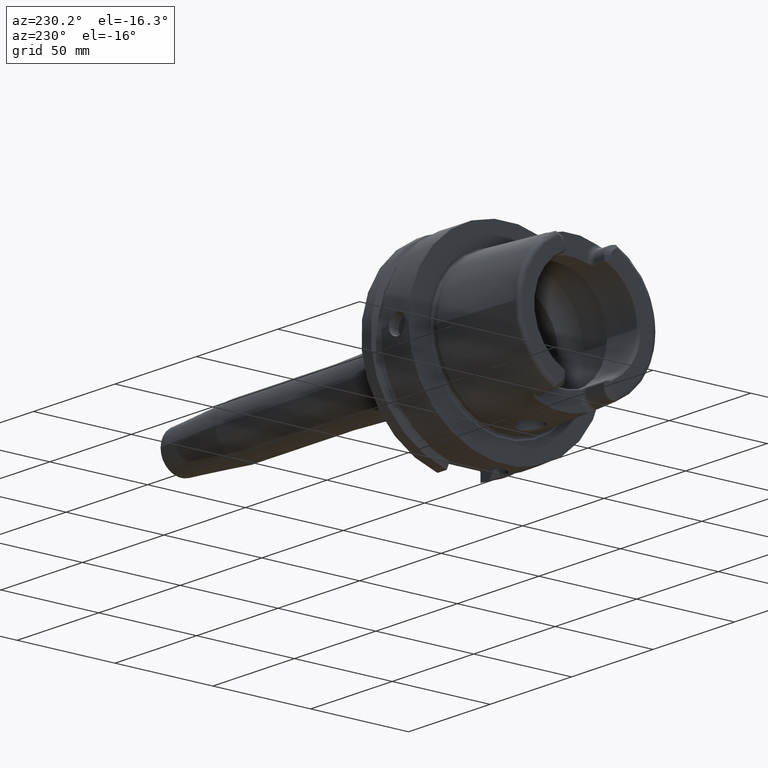
[diagram: clean part render]
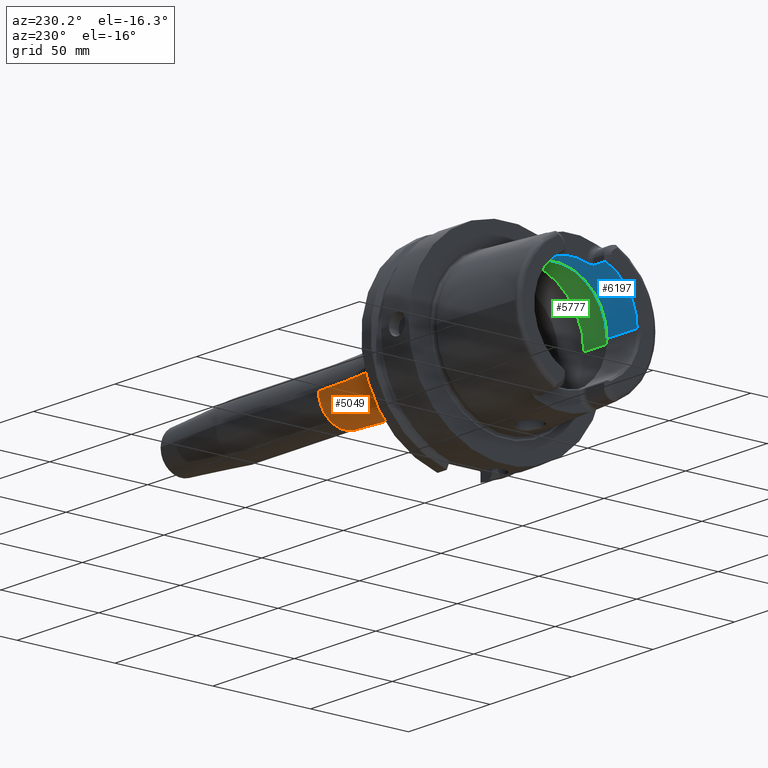
[diagram: same view with three faces highlighted in distinct colors, each labeled with its STEP entity id]
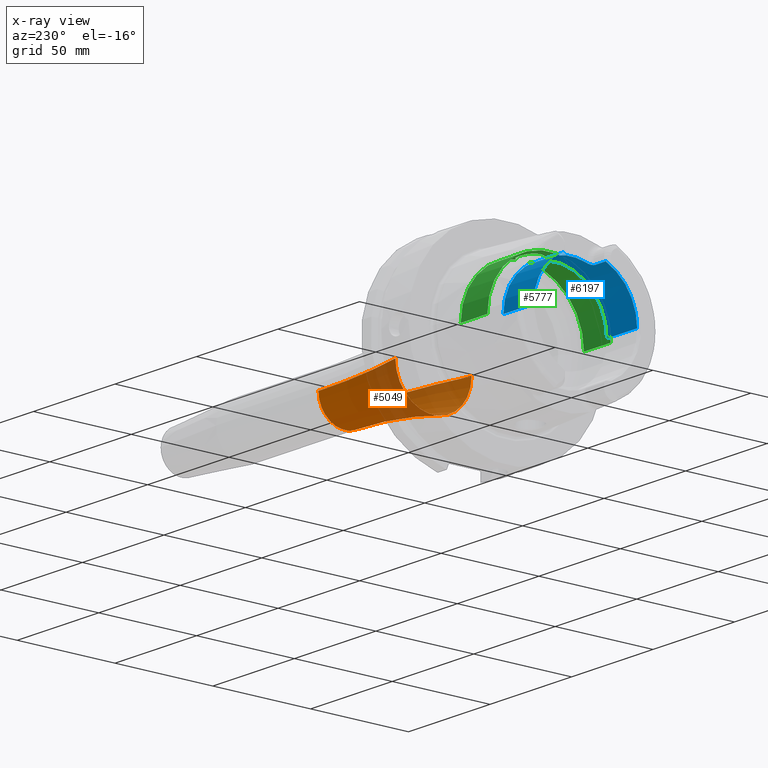
[diagram: x-ray of the same camera — body ghosted, the three highlighted faces saturated]
A machine part, auxiliary view with three faces highlighted in distinct colors.
The next image is the same camera in x-ray (body ghosted, the three faces saturated) — at least one of them is partly hidden behind the body in this view.
Their STEP definitions:

[orange] entity #5049 — the highlighted toroidal blend (fillet) surface has major radius 263.5 mm and minor (blend) radius 250 mm.
#1825=CARTESIAN_POINT('',(4.465217391304E1,0.E0,0.E0));
#1826=DIRECTION('',(1.E0,0.E0,0.E0));
#1827=DIRECTION('',(0.E0,-1.E0,0.E0));
#1828=AXIS2_PLACEMENT_3D('',#1825,#1826,#1827);
#1830=CARTESIAN_POINT('',(9.9E1,-2.635E2,-6.453888631507E-14));
#1831=DIRECTION('',(0.E0,0.E0,1.E0));
#1832=DIRECTION('',(0.E0,1.E0,0.E0));
#1833=AXIS2_PLACEMENT_3D('',#1830,#1831,#1832);
#1835=CARTESIAN_POINT('',(9.9E1,2.635E2,3.226944315753E-14));
#1836=DIRECTION('',(0.E0,0.E0,-1.E0));
#1837=DIRECTION('',(0.E0,-1.E0,0.E0));
#1838=AXIS2_PLACEMENT_3D('',#1835,#1836,#1837);
#1840=CARTESIAN_POINT('',(9.9E1,0.E0,0.E0));
#1841=DIRECTION('',(1.E0,0.E0,0.E0));
#1842=DIRECTION('',(0.E0,-1.E0,0.E0));
#1843=AXIS2_PLACEMENT_3D('',#1840,#1841,#1842);
#3165=CARTESIAN_POINT('',(9.9E1,1.35E1,0.E0));
#3166=CARTESIAN_POINT('',(9.9E1,-1.35E1,0.E0));
#3167=VERTEX_POINT('',#3165);
#3168=VERTEX_POINT('',#3166);
#3173=CARTESIAN_POINT('',(4.465217391304E1,-1.947886607996E1,0.E0));
#3174=CARTESIAN_POINT('',(4.465217391304E1,1.947886607996E1,0.E0));
#3175=VERTEX_POINT('',#3173);
#3176=VERTEX_POINT('',#3174);
#5037=CARTESIAN_POINT('',(9.9E1,0.E0,0.E0));
#5038=DIRECTION('',(1.E0,0.E0,0.E0));
#5039=DIRECTION('',(0.E0,-1.E0,0.E0));
#5040=AXIS2_PLACEMENT_3D('',#5037,#5038,#5039);
#5041=TOROIDAL_SURFACE('',#5040,2.635E2,2.5E2);
#5042=ORIENTED_EDGE('',*,*,#5002,.F.);
#5043=ORIENTED_EDGE('',*,*,#5032,.F.);
#5045=ORIENTED_EDGE('',*,*,#5044,.T.);
#5046=ORIENTED_EDGE('',*,*,#5028,.T.);
#5047=EDGE_LOOP('',(#5042,#5043,#5045,#5046));
#5048=FACE_OUTER_BOUND('',#5047,.F.);
#5049=ADVANCED_FACE('',(#5048),#5041,.F.);
#1829=CIRCLE('',#1828,1.947886607996E1);
#1834=CIRCLE('',#1833,2.5E2);
#1839=CIRCLE('',#1838,2.5E2);
#1844=CIRCLE('',#1843,1.35E1);
#5002=EDGE_CURVE('',#3175,#3176,#1829,.T.);
#5028=EDGE_CURVE('',#3167,#3176,#1839,.T.);
#5032=EDGE_CURVE('',#3168,#3175,#1834,.T.);
#5044=EDGE_CURVE('',#3168,#3167,#1844,.T.);

[blue] entity #6197 — the highlighted cylindrical surface (partial cylindrical patch) has radius 26.5 mm, axis along (1, 0, 0).
#165=CARTESIAN_POINT('',(-4.85E1,1.051E1,2.432673220965E1));
#167=CARTESIAN_POINT('',(-4.85E1,0.E0,0.E0));
#168=DIRECTION('',(1.E0,0.E0,0.E0));
#169=DIRECTION('',(0.E0,1.E0,0.E0));
#170=AXIS2_PLACEMENT_3D('',#167,#168,#169);
#187=CARTESIAN_POINT('',(-4.85E1,0.E0,0.E0));
#188=DIRECTION('',(1.E0,0.E0,0.E0));
#189=DIRECTION('',(0.E0,-3.966037735849E-1,9.179898947038E-1));
#190=AXIS2_PLACEMENT_3D('',#187,#188,#189);
#192=CARTESIAN_POINT('',(-4.85E1,-1.051E1,2.432673220965E1));
#513=DIRECTION('',(-1.E0,0.E0,0.E0));
#514=VECTOR('',#513,1.849662432703E1);
#515=CARTESIAN_POINT('',(-3.000337567297E1,2.65E1,0.E0));
#516=LINE('',#515,#514);
#522=DIRECTION('',(-1.E0,0.E0,0.E0));
#523=VECTOR('',#522,1.849662432703E1);
#524=CARTESIAN_POINT('',(-3.000337567297E1,-2.65E1,0.E0));
#525=LINE('',#524,#523);
#2496=DIRECTION('',(1.E0,0.E0,0.E0));
#2497=VECTOR('',#2496,6.380229667746E0);
#2498=CARTESIAN_POINT('',(-4.838022966775E1,1.039022966775E1,2.437812805470E1));
#2499=LINE('',#2498,#2497);
#2500=CARTESIAN_POINT('',(-3.971132486541E1,8.01E0,2.526044140549E1));
#2501=CARTESIAN_POINT('',(-3.970878365387E1,8.120563234658E0,2.522538218006E1));
#2502=CARTESIAN_POINT('',(-3.971906599640E1,8.340498761E0,2.515406323082E1));
#2503=CARTESIAN_POINT('',(-3.978267622202E1,8.672586520936E0,2.504149237513E1));
#2504=CARTESIAN_POINT('',(-3.989268945815E1,8.989467647893E0,2.492938353432E1));
#2505=CARTESIAN_POINT('',(-4.004052322956E1,9.277750297847E0,2.482340953473E1));
#2506=CARTESIAN_POINT('',(-4.022199090024E1,9.537479373845E0,2.472468297046E1));
#2507=CARTESIAN_POINT('',(-4.043924040036E1,9.773195748073E0,2.463237051391E1));
#2508=CARTESIAN_POINT('',(-4.069196362011E1,9.980705213938E0,2.454892857931E1));
#2509=CARTESIAN_POINT('',(-4.098453186625E1,1.015759575717E1,2.447617541728E1));
#2510=CARTESIAN_POINT('',(-4.132143240488E1,1.029570459017E1,2.441829554688E1));
#2511=CARTESIAN_POINT('',(-4.167918985613E1,1.037618705973E1,2.438412368561E1));
#2512=CARTESIAN_POINT('',(-4.189481839478E1,1.039022966775E1,2.437812805470E1));
#2513=CARTESIAN_POINT('',(-4.2E1,1.039022966775E1,2.437812805470E1));
#2515=CARTESIAN_POINT('',(-3.971132486541E1,-8.01E0,2.526044140549E1));
#2516=CARTESIAN_POINT('',(-3.971132486541E1,-7.271271578955E0,
2.549468967366E1));
#2517=CARTESIAN_POINT('',(-3.971132486546E1,-5.773250992792E0,
2.589833317849E1));
#2518=CARTESIAN_POINT('',(-3.971132486544E1,-3.481810319461E0,
2.630458298809E1));
#2519=CARTESIAN_POINT('',(-3.971132486544E1,-1.163586982585E0,
2.650849211583E1));
#2520=CARTESIAN_POINT('',(-3.971132486544E1,1.163586982585E0,2.650849211583E1));
#2521=CARTESIAN_POINT('',(-3.971132486544E1,3.481810319461E0,2.630458298809E1));
#2522=CARTESIAN_POINT('',(-3.971132486546E1,5.773250992791E0,2.589833317849E1));
#2523=CARTESIAN_POINT('',(-3.971132486541E1,7.271271578958E0,2.549468967366E1));
#2524=CARTESIAN_POINT('',(-3.971132486541E1,8.01E0,2.526044140549E1));
#2526=CARTESIAN_POINT('',(-4.2E1,-1.039022966775E1,2.437812805470E1));
#2527=CARTESIAN_POINT('',(-4.189375760304E1,-1.039022966775E1,
2.437812805470E1));
#2528=CARTESIAN_POINT('',(-4.167635124759E1,-1.037592175927E1,
2.438423721529E1));
#2529=CARTESIAN_POINT('',(-4.131623052643E1,-1.029415408513E1,
2.441895189414E1));
#2530=CARTESIAN_POINT('',(-4.097947032639E1,-1.015497495082E1,
2.447726388108E1));
#2531=CARTESIAN_POINT('',(-4.068903934051E1,-9.978495762119E0,
2.454982411868E1));
#2532=CARTESIAN_POINT('',(-4.043805179144E1,-9.771970406757E0,
2.463285308238E1));
#2533=CARTESIAN_POINT('',(-4.022178538202E1,-9.537157318169E0,
2.472480442904E1));
#2534=CARTESIAN_POINT('',(-4.004048499348E1,-9.277715471543E0,
2.482342368645E1));
#2535=CARTESIAN_POINT('',(-3.989237648633E1,-8.988811706632E0,
2.492962282131E1));
#2536=CARTESIAN_POINT('',(-3.978230284625E1,-8.671343229942E0,
2.504192722240E1));
#2537=CARTESIAN_POINT('',(-3.971884880625E1,-8.338547582645E0,
2.515470883480E1));
#2538=CARTESIAN_POINT('',(-3.970880260289E1,-8.119738798873E0,
2.522564360584E1));
#2539=CARTESIAN_POINT('',(-3.971132486541E1,-8.01E0,2.526044140549E1));
#2541=DIRECTION('',(1.E0,0.E0,0.E0));
#2542=VECTOR('',#2541,6.380229667746E0);
#2543=CARTESIAN_POINT('',(-4.838022966775E1,-1.039022966775E1,
2.437812805470E1));
#2544=LINE('',#2543,#2542);
#2545=CARTESIAN_POINT('',(-4.838022966775E1,-1.039022966775E1,
2.437812805470E1));
#2546=CARTESIAN_POINT('',(-4.842017594144E1,-1.043017594144E1,
2.436110250799E1));
#2547=CARTESIAN_POINT('',(-4.846009940760E1,-1.047009940760E1,
2.434397066250E1));
#2548=CARTESIAN_POINT('',(-4.85E1,-1.051E1,2.432673220965E1));
#2550=CARTESIAN_POINT('',(-3.000337567297E1,0.E0,0.E0));
#2551=DIRECTION('',(1.E0,0.E0,0.E0));
#2552=DIRECTION('',(0.E0,1.E0,0.E0));
#2553=AXIS2_PLACEMENT_3D('',#2550,#2551,#2552);
#2555=CARTESIAN_POINT('',(-4.85E1,1.051E1,2.432673220965E1));
#2556=CARTESIAN_POINT('',(-4.846009940760E1,1.047009940760E1,2.434397066250E1));
#2557=CARTESIAN_POINT('',(-4.842017594144E1,1.043017594144E1,2.436110250799E1));
#2558=CARTESIAN_POINT('',(-4.838022966775E1,1.039022966775E1,2.437812805470E1));
#2761=CARTESIAN_POINT('',(-3.000337567297E1,2.65E1,0.E0));
#2762=VERTEX_POINT('',#2761);
#2763=CARTESIAN_POINT('',(-4.85E1,2.65E1,0.E0));
#2764=VERTEX_POINT('',#2763);
#2773=CARTESIAN_POINT('',(-3.000337567297E1,-2.65E1,0.E0));
#2774=VERTEX_POINT('',#2773);
#2775=CARTESIAN_POINT('',(-4.85E1,-2.65E1,0.E0));
#2776=VERTEX_POINT('',#2775);
#2817=VERTEX_POINT('',#165);
#2832=VERTEX_POINT('',#192);
#2845=CARTESIAN_POINT('',(-4.2E1,1.039022966775E1,2.437812805470E1));
#2846=VERTEX_POINT('',#2845);
#2847=CARTESIAN_POINT('',(-3.971132486541E1,8.01E0,2.526044140549E1));
#2848=VERTEX_POINT('',#2847);
#2849=CARTESIAN_POINT('',(-4.2E1,-1.039022966775E1,2.437812805470E1));
#2850=VERTEX_POINT('',#2849);
#2851=CARTESIAN_POINT('',(-3.971132486541E1,-8.01E0,2.526044140549E1));
#2852=VERTEX_POINT('',#2851);
#2853=CARTESIAN_POINT('',(-4.838022966775E1,1.039022966775E1,2.437812805470E1));
#2854=VERTEX_POINT('',#2853);
#2855=CARTESIAN_POINT('',(-4.838022966775E1,-1.039022966775E1,
2.437812805470E1));
#2856=VERTEX_POINT('',#2855);
#6173=CARTESIAN_POINT('',(-5.3125E1,0.E0,0.E0));
#6174=DIRECTION('',(1.E0,0.E0,0.E0));
#6175=DIRECTION('',(0.E0,-1.E0,0.E0));
#6176=AXIS2_PLACEMENT_3D('',#6173,#6174,#6175);
#6177=CYLINDRICAL_SURFACE('',#6176,2.65E1);
#6178=ORIENTED_EDGE('',*,*,#3375,.T.);
#6180=ORIENTED_EDGE('',*,*,#6179,.F.);
#6182=ORIENTED_EDGE('',*,*,#6181,.F.);
#6184=ORIENTED_EDGE('',*,*,#6183,.F.);
#6186=ORIENTED_EDGE('',*,*,#6185,.F.);
#6188=ORIENTED_EDGE('',*,*,#6187,.T.);
#6189=ORIENTED_EDGE('',*,*,#3340,.T.);
#6190=ORIENTED_EDGE('',*,*,#3602,.F.);
#6191=ORIENTED_EDGE('',*,*,#6153,.F.);
#6192=ORIENTED_EDGE('',*,*,#3598,.T.);
#6193=ORIENTED_EDGE('',*,*,#3324,.T.);
#6194=ORIENTED_EDGE('',*,*,#3355,.T.);
#6195=EDGE_LOOP('',(#6178,#6180,#6182,#6184,#6186,#6188,#6189,#6190,#6191,#6192,
#6193,#6194));
#6196=FACE_OUTER_BOUND('',#6195,.F.);
#6197=ADVANCED_FACE('',(#6196),#6177,.F.);
#171=CIRCLE('',#170,2.65E1);
#191=CIRCLE('',#190,2.65E1);
#2514=B_SPLINE_CURVE_WITH_KNOTS('',3,(#2500,#2501,#2502,#2503,#2504,#2505,#2506,
#2507,#2508,#2509,#2510,#2511,#2512,#2513),.UNSPECIFIED.,.F.,.F.,(4,1,1,1,1,1,1,
1,1,1,1,4),(0.E0,9.090909090909E-2,1.818181818182E-1,2.727272727273E-1,
3.636363636364E-1,4.545454545455E-1,5.454545454545E-1,6.363636363636E-1,
7.272727272727E-1,8.181818181818E-1,9.090909090909E-1,1.E0),.UNSPECIFIED.);
#2525=B_SPLINE_CURVE_WITH_KNOTS('',3,(#2515,#2516,#2517,#2518,#2519,#2520,#2521,
#2522,#2523,#2524),.UNSPECIFIED.,.F.,.F.,(4,1,1,1,1,1,1,4),(0.E0,
1.428571428571E-1,2.857142857143E-1,4.285714285714E-1,5.714285714286E-1,
7.142857142857E-1,8.571428571429E-1,1.E0),.UNSPECIFIED.);
#2540=B_SPLINE_CURVE_WITH_KNOTS('',3,(#2526,#2527,#2528,#2529,#2530,#2531,#2532,
#2533,#2534,#2535,#2536,#2537,#2538,#2539),.UNSPECIFIED.,.F.,.F.,(4,1,1,1,1,1,1,
1,1,1,1,4),(0.E0,9.090909090909E-2,1.818181818182E-1,2.727272727273E-1,
3.636363636364E-1,4.545454545455E-1,5.454545454545E-1,6.363636363636E-1,
7.272727272727E-1,8.181818181818E-1,9.090909090909E-1,1.E0),.UNSPECIFIED.);
#2549=B_SPLINE_CURVE_WITH_KNOTS('',3,(#2545,#2546,#2547,#2548),.UNSPECIFIED.,
.F.,.F.,(4,4),(0.E0,1.E0),.UNSPECIFIED.);
#2554=CIRCLE('',#2553,2.65E1);
#2559=B_SPLINE_CURVE_WITH_KNOTS('',3,(#2555,#2556,#2557,#2558),.UNSPECIFIED.,
.F.,.F.,(4,4),(0.E0,1.E0),.UNSPECIFIED.);
#3324=EDGE_CURVE('',#2764,#2817,#171,.T.);
#3340=EDGE_CURVE('',#2832,#2776,#191,.T.);
#3355=EDGE_CURVE('',#2817,#2854,#2559,.T.);
#3375=EDGE_CURVE('',#2854,#2846,#2499,.T.);
#3598=EDGE_CURVE('',#2762,#2764,#516,.T.);
#3602=EDGE_CURVE('',#2774,#2776,#525,.T.);
#6153=EDGE_CURVE('',#2762,#2774,#2554,.T.);
#6179=EDGE_CURVE('',#2848,#2846,#2514,.T.);
#6181=EDGE_CURVE('',#2852,#2848,#2525,.T.);
#6183=EDGE_CURVE('',#2850,#2852,#2540,.T.);
#6185=EDGE_CURVE('',#2856,#2850,#2544,.T.);
#6187=EDGE_CURVE('',#2856,#2832,#2549,.T.);

[green] entity #5777 — the highlighted cylindrical surface (partial cylindrical patch) has radius 31.5 mm, axis along (1, 0, 0).
#2089=CARTESIAN_POINT('',(-9.846794344809E0,3.073185883624E0,3.134972932139E1));
#2091=CARTESIAN_POINT('',(-9.846794344809E0,-3.073185883624E0,
3.134972932139E1));
#2105=CARTESIAN_POINT('',(-9.846794344809E0,3.073185883624E0,3.134972932139E1));
#2106=CARTESIAN_POINT('',(-9.979350610583E0,3.295460007053E0,3.132793998818E1));
#2107=CARTESIAN_POINT('',(-1.027063887730E1,3.719249728918E0,3.128166137702E1));
#2108=CARTESIAN_POINT('',(-1.079035808135E1,4.298920478732E0,3.120689190392E1));
#2109=CARTESIAN_POINT('',(-1.137898274965E1,4.805041081809E0,3.113254787077E1));
#2110=CARTESIAN_POINT('',(-1.202658779818E1,5.230450418473E0,3.106351678434E1));
#2111=CARTESIAN_POINT('',(-1.271973952812E1,5.567575114105E0,3.100453126817E1));
#2112=CARTESIAN_POINT('',(-1.345035493347E1,5.813488696578E0,3.095911024256E1));
#2113=CARTESIAN_POINT('',(-1.420764120587E1,5.964169161635E0,3.093027187856E1));
#2114=CARTESIAN_POINT('',(-1.497984446875E1,6.016521870398E0,3.092007259785E1));
#2115=CARTESIAN_POINT('',(-1.575309935594E1,5.969543750814E0,3.092922961197E1));
#2116=CARTESIAN_POINT('',(-1.652541066125E1,5.820717381311E0,3.095775345043E1));
#2117=CARTESIAN_POINT('',(-1.727341934717E1,5.571094163642E0,3.100391709528E1));
#2118=CARTESIAN_POINT('',(-1.797719195757E1,5.228690177102E0,3.106382935769E1));
#2119=CARTESIAN_POINT('',(-1.863207171596E1,4.797562142056E0,3.113375842146E1));
#2120=CARTESIAN_POINT('',(-1.923624043330E1,4.274224967480E0,3.121040427516E1));
#2121=CARTESIAN_POINT('',(-1.976613927382E1,3.673557002686E0,3.128721124755E1));
#2122=CARTESIAN_POINT('',(-2.020637808011E1,3.016563255921E0,3.135771603394E1));
#2123=CARTESIAN_POINT('',(-2.055582787998E1,2.311076998962E0,3.141795380196E1));
#2124=CARTESIAN_POINT('',(-2.081257397864E1,1.557663843048E0,3.146462805191E1));
#2125=CARTESIAN_POINT('',(-2.096662575255E1,7.779183163064E-1,
3.149361665994E1));
#2126=CARTESIAN_POINT('',(-2.1E1,2.599995876471E-1,3.15E1));
#2127=CARTESIAN_POINT('',(-2.1E1,0.E0,3.15E1));
#2129=CARTESIAN_POINT('',(-9.846794344809E0,0.E0,0.E0));
#2130=DIRECTION('',(1.E0,0.E0,0.E0));
#2131=DIRECTION('',(0.E0,1.E0,0.E0));
#2132=AXIS2_PLACEMENT_3D('',#2129,#2130,#2131);
#2134=CARTESIAN_POINT('',(-9.846794344809E0,0.E0,0.E0));
#2135=DIRECTION('',(1.E0,0.E0,0.E0));
#2136=DIRECTION('',(0.E0,-9.756145662299E-2,9.952295022665E-1));
#2137=AXIS2_PLACEMENT_3D('',#2134,#2135,#2136);
#2139=CARTESIAN_POINT('',(-2.1E1,0.E0,3.15E1));
#2140=CARTESIAN_POINT('',(-2.1E1,-2.571227322628E-1,3.15E1));
#2141=CARTESIAN_POINT('',(-2.096736472421E1,-7.693984126219E-1,
3.149375838501E1));
#2142=CARTESIAN_POINT('',(-2.081659080202E1,-1.541049857093E0,
3.146537963405E1));
#2143=CARTESIAN_POINT('',(-2.056550243220E1,-2.286682308644E0,
3.141968549161E1));
#2144=CARTESIAN_POINT('',(-2.022340587255E1,-2.986151195866E0,
3.136058293097E1));
#2145=CARTESIAN_POINT('',(-1.979326828629E1,-3.637340617479E0,
3.129140992251E1));
#2146=CARTESIAN_POINT('',(-1.927478905529E1,-4.235071698102E0,
3.121573223434E1));
#2147=CARTESIAN_POINT('',(-1.868247740736E1,-4.758599460883E0,
3.113974969594E1));
#2148=CARTESIAN_POINT('',(-1.803686661027E1,-5.194005287447E0,
3.106967109408E1));
#2149=CARTESIAN_POINT('',(-1.734161583992E1,-5.542612510908E0,
3.100904668501E1));
#2150=CARTESIAN_POINT('',(-1.659831672384E1,-5.801097428712E0,
3.096145823760E1));
#2151=CARTESIAN_POINT('',(-1.582796267308E1,-5.959654019058E0,
3.093114785940E1));
#2152=CARTESIAN_POINT('',(-1.505461105168E1,-6.016295452388E0,
3.092011677740E1));
#2153=CARTESIAN_POINT('',(-1.428037054876E1,-5.973681036842E0,
3.092842594800E1));
#2154=CARTESIAN_POINT('',(-1.350797364848E1,-5.829331845562E0,
3.095612333536E1));
#2155=CARTESIAN_POINT('',(-1.275967231567E1,-5.584336729774E0,
3.100151619127E1));
#2156=CARTESIAN_POINT('',(-1.205825931241E1,-5.248465876117E0,
3.106046672590E1));
#2157=CARTESIAN_POINT('',(-1.140515180586E1,-4.825059400574E0,
3.112945635419E1));
#2158=CARTESIAN_POINT('',(-1.080442776173E1,-4.313579447853E0,
3.120492076547E1));
#2159=CARTESIAN_POINT('',(-1.027427619122E1,-3.724621952008E0,
3.128107616940E1));
#2160=CARTESIAN_POINT('',(-9.980265351482E0,-3.296993870656E0,
3.132778962490E1));
#2161=CARTESIAN_POINT('',(-9.846794344809E0,-3.073185883624E0,
3.134972932139E1));
#2216=DIRECTION('',(-1.E0,0.E0,0.E0));
#2217=VECTOR('',#2216,1.640380457843E1);
#2218=CARTESIAN_POINT('',(-9.846794344809E0,-3.15E1,0.E0));
#2219=LINE('',#2218,#2217);
#2220=DIRECTION('',(-1.E0,0.E0,0.E0));
#2221=VECTOR('',#2220,1.640380457843E1);
#2222=CARTESIAN_POINT('',(-9.846794344809E0,3.15E1,0.E0));
#2223=LINE('',#2222,#2221);
#2473=CARTESIAN_POINT('',(-2.625059892324E1,0.E0,0.E0));
#2474=DIRECTION('',(1.E0,0.E0,0.E0));
#2475=DIRECTION('',(0.E0,1.E0,0.E0));
#2476=AXIS2_PLACEMENT_3D('',#2473,#2474,#2475);
#2755=CARTESIAN_POINT('',(-9.846794344809E0,3.15E1,0.E0));
#2756=VERTEX_POINT('',#2755);
#2757=CARTESIAN_POINT('',(-2.625059892324E1,3.15E1,0.E0));
#2758=VERTEX_POINT('',#2757);
#2767=CARTESIAN_POINT('',(-9.846794344809E0,-3.15E1,0.E0));
#2768=VERTEX_POINT('',#2767);
#2769=CARTESIAN_POINT('',(-2.625059892324E1,-3.15E1,0.E0));
#2770=VERTEX_POINT('',#2769);
#2935=VERTEX_POINT('',#2089);
#2936=VERTEX_POINT('',#2091);
#2937=VERTEX_POINT('',#2127);
#5760=CARTESIAN_POINT('',(-5.3125E1,0.E0,0.E0));
#5761=DIRECTION('',(1.E0,0.E0,0.E0));
#5762=DIRECTION('',(0.E0,-1.E0,0.E0));
#5763=AXIS2_PLACEMENT_3D('',#5760,#5761,#5762);
#5764=CYLINDRICAL_SURFACE('',#5763,3.15E1);
#5765=ORIENTED_EDGE('',*,*,#5719,.F.);
#5766=ORIENTED_EDGE('',*,*,#5755,.F.);
#5768=ORIENTED_EDGE('',*,*,#5767,.T.);
#5770=ORIENTED_EDGE('',*,*,#5769,.T.);
#5772=ORIENTED_EDGE('',*,*,#5771,.F.);
#5773=ORIENTED_EDGE('',*,*,#5747,.F.);
#5774=ORIENTED_EDGE('',*,*,#5441,.F.);
#5775=EDGE_LOOP('',(#5765,#5766,#5768,#5770,#5772,#5773,#5774));
#5776=FACE_OUTER_BOUND('',#5775,.F.);
#5777=ADVANCED_FACE('',(#5776),#5764,.F.);
#2128=B_SPLINE_CURVE_WITH_KNOTS('',3,(#2105,#2106,#2107,#2108,#2109,#2110,#2111,
#2112,#2113,#2114,#2115,#2116,#2117,#2118,#2119,#2120,#2121,#2122,#2123,#2124,
#2125,#2126,#2127),.UNSPECIFIED.,.F.,.F.,(4,1,1,1,1,1,1,1,1,1,1,1,1,1,1,1,1,1,1,
1,4),(0.E0,5.E-2,1.E-1,1.5E-1,2.E-1,2.5E-1,3.E-1,3.5E-1,4.E-1,4.5E-1,5.E-1,
5.5E-1,6.E-1,6.5E-1,7.E-1,7.5E-1,8.E-1,8.5E-1,9.E-1,9.5E-1,1.E0),.UNSPECIFIED.);
#2133=CIRCLE('',#2132,3.15E1);
#2138=CIRCLE('',#2137,3.15E1);
#2162=B_SPLINE_CURVE_WITH_KNOTS('',3,(#2139,#2140,#2141,#2142,#2143,#2144,#2145,
#2146,#2147,#2148,#2149,#2150,#2151,#2152,#2153,#2154,#2155,#2156,#2157,#2158,
#2159,#2160,#2161),.UNSPECIFIED.,.F.,.F.,(4,1,1,1,1,1,1,1,1,1,1,1,1,1,1,1,1,1,1,
1,4),(0.E0,5.E-2,1.E-1,1.5E-1,2.E-1,2.5E-1,3.E-1,3.5E-1,4.E-1,4.5E-1,5.E-1,
5.5E-1,6.E-1,6.5E-1,7.E-1,7.5E-1,8.E-1,8.5E-1,9.E-1,9.5E-1,1.E0),.UNSPECIFIED.);
#2477=CIRCLE('',#2476,3.15E1);
#5441=EDGE_CURVE('',#2937,#2936,#2162,.T.);
#5719=EDGE_CURVE('',#2935,#2937,#2128,.T.);
#5747=EDGE_CURVE('',#2936,#2768,#2138,.T.);
#5755=EDGE_CURVE('',#2756,#2935,#2133,.T.);
#5767=EDGE_CURVE('',#2756,#2758,#2223,.T.);
#5769=EDGE_CURVE('',#2758,#2770,#2477,.T.);
#5771=EDGE_CURVE('',#2768,#2770,#2219,.T.);